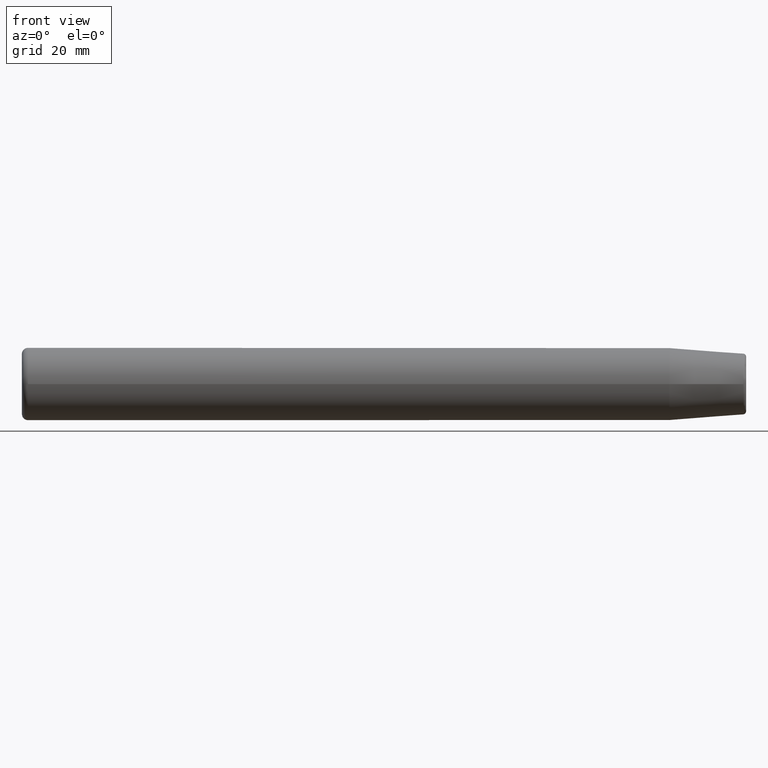
[diagram: clean part render]
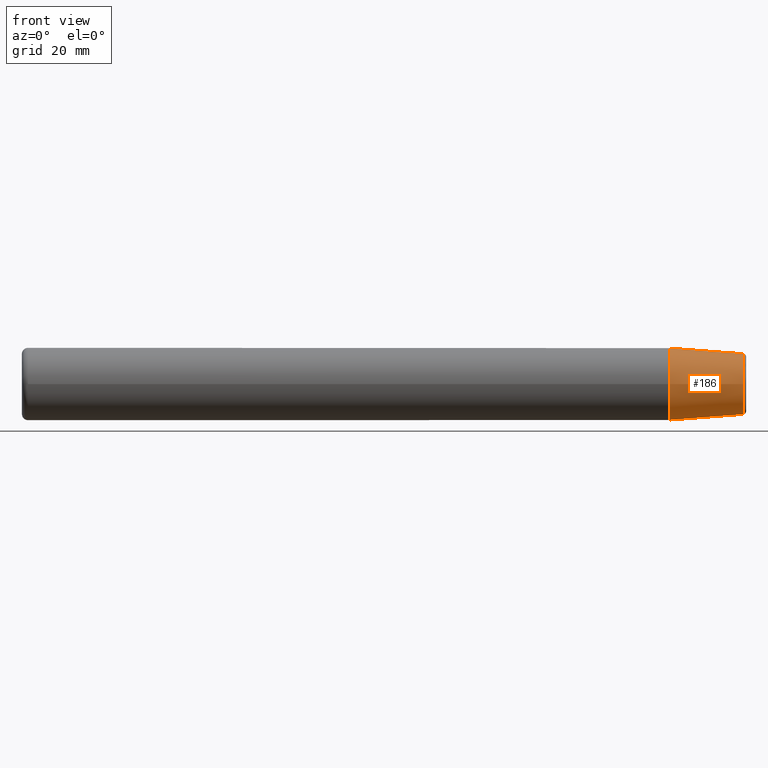
[diagram: same view with one face highlighted and labeled with its STEP entity id]
A machine part, front view. The second image highlights one B-rep face of the part: STEP entity #186.
In plain terms, the highlighted conical surface has half-angle 4.5 deg.
Its self-contained STEP definition (entity closure, byte-faithful):
#28=LINE('',#334,#35);
#35=VECTOR('',#266,5.5);
#42=CONICAL_SURFACE('',#226,5.5,0.0785398163397448);
#45=FACE_OUTER_BOUND('',#58,.T.);
#58=EDGE_LOOP('',(#138,#139,#140,#141,#142));
#76=CIRCLE('',#224,5.03626342103746);
#77=CIRCLE('',#225,5.03626342103746);
#78=CIRCLE('',#227,6.);
#93=VERTEX_POINT('',#327);
#94=VERTEX_POINT('',#329);
#95=VERTEX_POINT('',#333);
#110=EDGE_CURVE('',#93,#94,#76,.T.);
#111=EDGE_CURVE('',#94,#93,#77,.T.);
#112=EDGE_CURVE('',#94,#95,#28,.T.);
#113=EDGE_CURVE('',#95,#95,#78,.T.);
#138=ORIENTED_EDGE('',*,*,#111,.F.);
#139=ORIENTED_EDGE('',*,*,#112,.T.);
#140=ORIENTED_EDGE('',*,*,#113,.T.);
#141=ORIENTED_EDGE('',*,*,#112,.F.);
#142=ORIENTED_EDGE('',*,*,#110,.F.);
#186=ADVANCED_FACE('',(#45),#42,.T.);
#224=AXIS2_PLACEMENT_3D('',#330,#260,#261);
#225=AXIS2_PLACEMENT_3D('',#331,#262,#263);
#226=AXIS2_PLACEMENT_3D('',#332,#264,#265);
#227=AXIS2_PLACEMENT_3D('',#335,#267,#268);
#260=DIRECTION('center_axis',(1.,0.,0.));
#261=DIRECTION('ref_axis',(0.,-1.,3.06161699786838E-17));
#262=DIRECTION('center_axis',(1.,0.,0.));
#263=DIRECTION('ref_axis',(0.,-1.,3.06161699786838E-17));
#264=DIRECTION('center_axis',(-1.,0.,0.));
#265=DIRECTION('ref_axis',(0.,1.,0.));
#266=DIRECTION('',(-0.996917333733128,-0.0784590957278449,-9.60846804471011E-18));
#267=DIRECTION('center_axis',(1.,0.,0.));
#268=DIRECTION('ref_axis',(0.,0.,-1.));
#327=CARTESIAN_POINT('',(119.539229547864,-6.16764387823642E-16,5.03626342103746));
#329=CARTESIAN_POINT('',(119.539229547864,-5.03626342103746,-6.16764387823643E-16));
#330=CARTESIAN_POINT('Origin',(119.539229547864,0.,-7.70955484779553E-16));
#331=CARTESIAN_POINT('Origin',(119.539229547864,0.,-7.70955484779553E-16));
#332=CARTESIAN_POINT('Origin',(113.646897631913,0.,0.));
#333=CARTESIAN_POINT('',(107.293795263825,-6.,-7.34788079488412E-16));
#334=CARTESIAN_POINT('',(113.646897631913,-5.5,-6.73555739531044E-16));
#335=CARTESIAN_POINT('Origin',(107.293795263825,0.,0.));